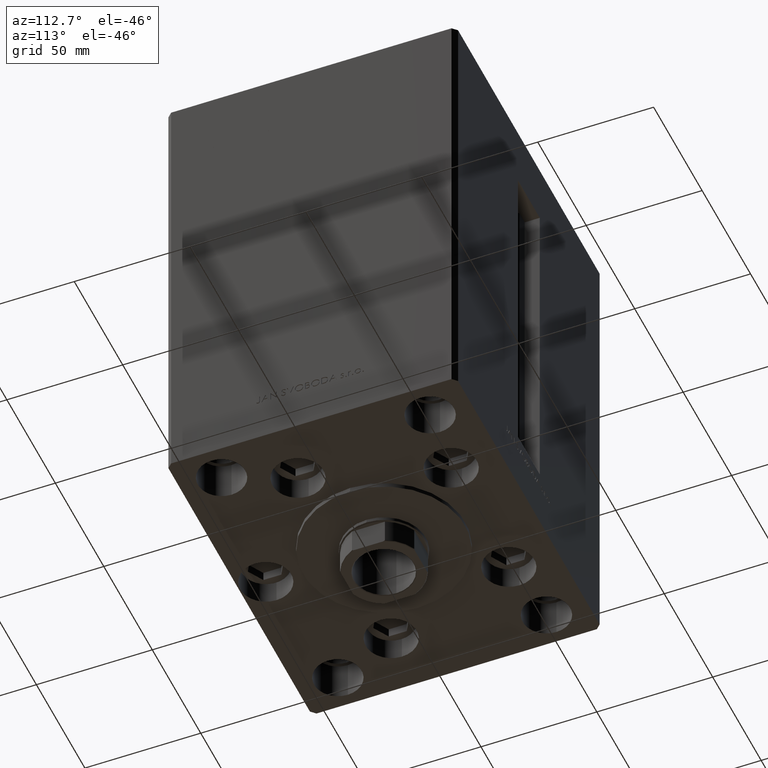
[diagram: clean part render]
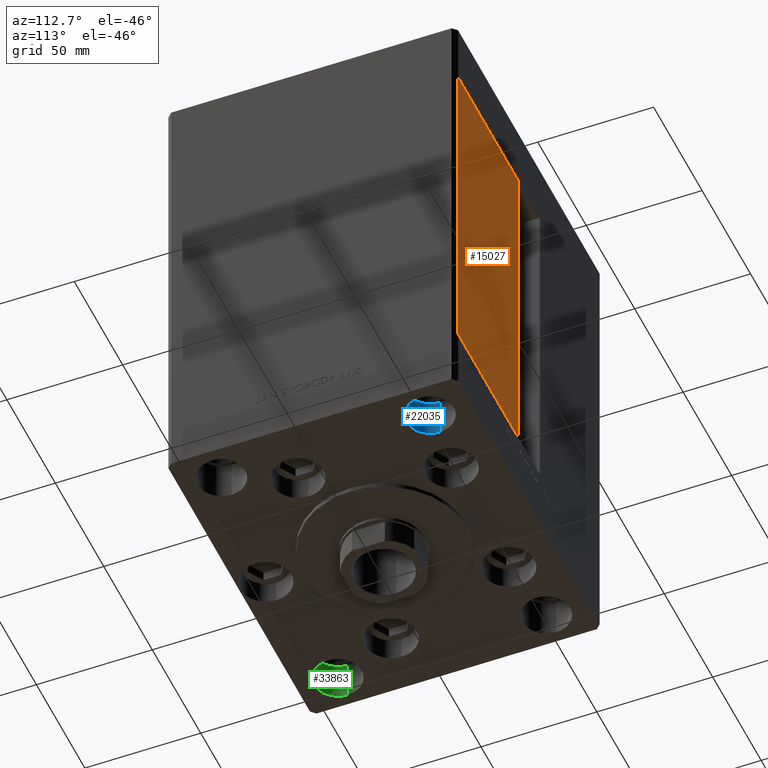
[diagram: same view with three faces highlighted in distinct colors, each labeled with its STEP entity id]
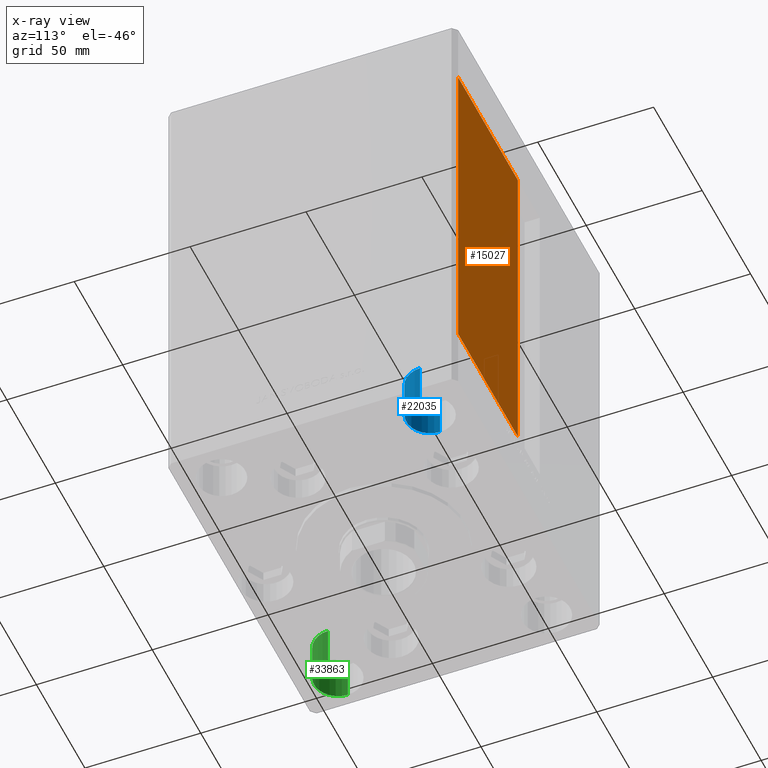
[diagram: x-ray of the same camera — body ghosted, the three highlighted faces saturated]
A machine part, auxiliary view with three faces highlighted in distinct colors.
The next image is the same camera in x-ray (body ghosted, the three faces saturated) — at least one of them is partly hidden behind the body in this view.
Their STEP definitions:

[orange] entity #15027 — the highlighted planar face has unit normal (-0, -1, 0).
#658 = LINE ( 'NONE', #28387, #8424 ) ;
#1835 = FACE_OUTER_BOUND ( 'NONE', #12803, .T. ) ;
#2024 = CARTESIAN_POINT ( 'NONE',  ( 73.00000000000001421, 62.50000000000000000, 0.000000000000000000 ) ) ;
#3334 = VERTEX_POINT ( 'NONE', #20939 ) ;
#4470 = DIRECTION ( 'NONE',  ( -1.000000000000000000, 1.123707514802790025E-16, 0.000000000000000000 ) ) ;
#8424 = VECTOR ( 'NONE', #4470, 1000.000000000000000 ) ;
#8457 = ORIENTED_EDGE ( 'NONE', *, *, #12742, .T. ) ;
#8594 = VERTEX_POINT ( 'NONE', #28262 ) ;
#12742 = EDGE_CURVE ( 'NONE', #22221, #3334, #25839, .T. ) ;
#12803 = EDGE_LOOP ( 'NONE', ( #38121, #8457, #17030, #33456 ) ) ;
#13502 = VECTOR ( 'NONE', #32947, 1000.000000000000000 ) ;
#14126 = LINE ( 'NONE', #28882, #13502 ) ;
#14719 = VECTOR ( 'NONE', #39176, 1000.000000000000000 ) ;
#15027 = ADVANCED_FACE ( 'NONE', ( #1835 ), #44292, .F. ) ;
#17030 = ORIENTED_EDGE ( 'NONE', *, *, #32916, .T. ) ;
#18450 = DIRECTION ( 'NONE',  ( -0.000000000000000000, -0.000000000000000000, 1.000000000000000000 ) ) ;
#20939 = CARTESIAN_POINT ( 'NONE',  ( 11.24999999999999467, 62.49999999999999289, 147.0000000000000000 ) ) ;
#21830 = VERTEX_POINT ( 'NONE', #2024 ) ;
#22221 = VERTEX_POINT ( 'NONE', #46362 ) ;
#24992 = CARTESIAN_POINT ( 'NONE',  ( -11.25000000000000178, 62.49999999999999289, 147.0000000000000000 ) ) ;
#25839 = LINE ( 'NONE', #41328, #37431 ) ;
#26148 = EDGE_CURVE ( 'NONE', #21830, #22221, #658, .T. ) ;
#28262 = CARTESIAN_POINT ( 'NONE',  ( 73.00000000000001421, 62.50000000000000000, 147.0000000000000000 ) ) ;
#28387 = CARTESIAN_POINT ( 'NONE',  ( -11.25000000000000178, 62.49999999999999289, 0.000000000000000000 ) ) ;
#28882 = CARTESIAN_POINT ( 'NONE',  ( -11.25000000000000178, 62.49999999999999289, 147.0000000000000000 ) ) ;
#32916 = EDGE_CURVE ( 'NONE', #3334, #8594, #14126, .T. ) ;
#32947 = DIRECTION ( 'NONE',  ( 1.000000000000000000, 0.000000000000000000, 0.000000000000000000 ) ) ;
#33456 = ORIENTED_EDGE ( 'NONE', *, *, #47829, .T. ) ;
#37431 = VECTOR ( 'NONE', #18450, 1000.000000000000000 ) ;
#38121 = ORIENTED_EDGE ( 'NONE', *, *, #26148, .T. ) ;
#39176 = DIRECTION ( 'NONE',  ( -0.000000000000000000, -0.000000000000000000, -1.000000000000000000 ) ) ;
#40482 = DIRECTION ( 'NONE',  ( 1.000000000000000000, -1.123707514802790025E-16, 0.000000000000000000 ) ) ;
#41328 = CARTESIAN_POINT ( 'NONE',  ( 11.25000000000000178, 62.49999999999999289, 0.000000000000000000 ) ) ;
#42494 = CARTESIAN_POINT ( 'NONE',  ( 73.00000000000001421, 62.50000000000000000, 147.0000000000000000 ) ) ;
#43084 = AXIS2_PLACEMENT_3D ( 'NONE', #24992, #49122, #40482 ) ;
#44292 = PLANE ( 'NONE',  #43084 ) ;
#46300 = LINE ( 'NONE', #42494, #14719 ) ;
#46362 = CARTESIAN_POINT ( 'NONE',  ( 11.25000000000000178, 62.49999999999999289, 0.000000000000000000 ) ) ;
#47829 = EDGE_CURVE ( 'NONE', #8594, #21830, #46300, .T. ) ;
#49122 = DIRECTION ( 'NONE',  ( -1.123707514802790025E-16, -1.000000000000000000, 0.000000000000000000 ) ) ;

[blue] entity #22035 — the highlighted cylindrical surface (edge-blend (fillet) strip) has radius 10.25 mm, axis along (0, 0, -1).
#1644 = DIRECTION ( 'NONE',  ( 1.000000000000000000, 0.000000000000000000, 0.000000000000000000 ) ) ;
#2212 = ORIENTED_EDGE ( 'NONE', *, *, #18835, .T. ) ;
#2613 = VERTEX_POINT ( 'NONE', #14468 ) ;
#6094 = CARTESIAN_POINT ( 'NONE',  ( -70.25000000000000000, 45.00000000000000711, 0.000000000000000000 ) ) ;
#7420 = AXIS2_PLACEMENT_3D ( 'NONE', #39674, #23928, #15798 ) ;
#11056 = VECTOR ( 'NONE', #40616, 1000.000000000000000 ) ;
#11233 = ORIENTED_EDGE ( 'NONE', *, *, #16165, .F. ) ;
#11246 = EDGE_CURVE ( 'NONE', #2613, #50299, #36616, .T. ) ;
#11638 = CARTESIAN_POINT ( 'NONE',  ( -49.74999999999999289, 45.00000000000000711, 0.000000000000000000 ) ) ;
#12357 = CIRCLE ( 'NONE', #40769, 10.25000000000000178 ) ;
#13354 = EDGE_LOOP ( 'NONE', ( #11233, #45288, #2212, #49101 ) ) ;
#13731 = DIRECTION ( 'NONE',  ( -0.000000000000000000, -0.000000000000000000, 1.000000000000000000 ) ) ;
#14468 = CARTESIAN_POINT ( 'NONE',  ( -49.74999999999999289, 45.00000000000000711, -17.00000000000000000 ) ) ;
#15798 = DIRECTION ( 'NONE',  ( 1.000000000000000000, 0.000000000000000000, 0.000000000000000000 ) ) ;
#16165 = EDGE_CURVE ( 'NONE', #35245, #2613, #26904, .T. ) ;
#18835 = EDGE_CURVE ( 'NONE', #21792, #50299, #12357, .T. ) ;
#21722 = CARTESIAN_POINT ( 'NONE',  ( -60.00000000000000000, 45.00000000000000711, 0.000000000000000000 ) ) ;
#21792 = VERTEX_POINT ( 'NONE', #6094 ) ;
#22035 = ADVANCED_FACE ( 'NONE', ( #23618 ), #46243, .F. ) ;
#22321 = LINE ( 'NONE', #29455, #11056 ) ;
#22785 = CARTESIAN_POINT ( 'NONE',  ( -70.25000000000000000, 45.00000000000000711, -17.00000000000000000 ) ) ;
#23618 = FACE_OUTER_BOUND ( 'NONE', #13354, .T. ) ;
#23928 = DIRECTION ( 'NONE',  ( 0.000000000000000000, 0.000000000000000000, 1.000000000000000000 ) ) ;
#26904 = CIRCLE ( 'NONE', #7420, 10.25000000000000178 ) ;
#26952 = DIRECTION ( 'NONE',  ( -0.000000000000000000, -0.000000000000000000, 1.000000000000000000 ) ) ;
#27507 = VECTOR ( 'NONE', #13731, 1000.000000000000000 ) ;
#29455 = CARTESIAN_POINT ( 'NONE',  ( -70.25000000000000000, 45.00000000000000711, -17.00000000000000000 ) ) ;
#29613 = DIRECTION ( 'NONE',  ( 1.000000000000000000, 0.000000000000000000, 0.000000000000000000 ) ) ;
#30112 = DIRECTION ( 'NONE',  ( 0.000000000000000000, 0.000000000000000000, 1.000000000000000000 ) ) ;
#32548 = EDGE_CURVE ( 'NONE', #35245, #21792, #22321, .T. ) ;
#32559 = CARTESIAN_POINT ( 'NONE',  ( -49.74999999999999289, 45.00000000000000711, -17.00000000000000000 ) ) ;
#35245 = VERTEX_POINT ( 'NONE', #22785 ) ;
#36616 = LINE ( 'NONE', #32559, #27507 ) ;
#39674 = CARTESIAN_POINT ( 'NONE',  ( -60.00000000000000000, 45.00000000000000711, -17.00000000000000000 ) ) ;
#40616 = DIRECTION ( 'NONE',  ( -0.000000000000000000, -0.000000000000000000, 1.000000000000000000 ) ) ;
#40769 = AXIS2_PLACEMENT_3D ( 'NONE', #21722, #30112, #29613 ) ;
#42676 = CARTESIAN_POINT ( 'NONE',  ( -60.00000000000000000, 45.00000000000000711, -17.00000000000000000 ) ) ;
#43203 = AXIS2_PLACEMENT_3D ( 'NONE', #42676, #26952, #1644 ) ;
#45288 = ORIENTED_EDGE ( 'NONE', *, *, #32548, .T. ) ;
#46243 = CYLINDRICAL_SURFACE ( 'NONE', #43203, 10.25000000000000178 ) ;
#49101 = ORIENTED_EDGE ( 'NONE', *, *, #11246, .F. ) ;
#50299 = VERTEX_POINT ( 'NONE', #11638 ) ;

[green] entity #33863 — the highlighted cylindrical surface (edge-blend (fillet) strip) has radius 10.25 mm, axis along (0, 0, -1).
#3070 = VECTOR ( 'NONE', #17061, 1000.000000000000000 ) ;
#3705 = DIRECTION ( 'NONE',  ( 1.000000000000000000, 0.000000000000000000, 0.000000000000000000 ) ) ;
#5350 = CARTESIAN_POINT ( 'NONE',  ( 70.25000000000000000, -45.00000000000000000, -17.00000000000000000 ) ) ;
#5703 = ORIENTED_EDGE ( 'NONE', *, *, #11700, .T. ) ;
#8601 = EDGE_CURVE ( 'NONE', #37017, #35189, #20878, .T. ) ;
#8705 = CARTESIAN_POINT ( 'NONE',  ( 49.75000000000000000, -45.00000000000000000, -17.00000000000000000 ) ) ;
#8877 = AXIS2_PLACEMENT_3D ( 'NONE', #19990, #46425, #3705 ) ;
#11185 = ORIENTED_EDGE ( 'NONE', *, *, #8601, .F. ) ;
#11572 = DIRECTION ( 'NONE',  ( 1.000000000000000000, 0.000000000000000000, 0.000000000000000000 ) ) ;
#11700 = EDGE_CURVE ( 'NONE', #39731, #35189, #25114, .T. ) ;
#15033 = AXIS2_PLACEMENT_3D ( 'NONE', #39006, #43578, #11572 ) ;
#15637 = CARTESIAN_POINT ( 'NONE',  ( 60.00000000000000711, -45.00000000000000000, -17.00000000000000000 ) ) ;
#17061 = DIRECTION ( 'NONE',  ( -0.000000000000000000, -0.000000000000000000, 1.000000000000000000 ) ) ;
#17071 = DIRECTION ( 'NONE',  ( -0.000000000000000000, -0.000000000000000000, 1.000000000000000000 ) ) ;
#17470 = CIRCLE ( 'NONE', #15033, 10.25000000000000178 ) ;
#19990 = CARTESIAN_POINT ( 'NONE',  ( 60.00000000000000711, -45.00000000000000000, 0.000000000000000000 ) ) ;
#20878 = LINE ( 'NONE', #5350, #3070 ) ;
#23061 = ORIENTED_EDGE ( 'NONE', *, *, #39401, .T. ) ;
#25114 = CIRCLE ( 'NONE', #8877, 10.25000000000000178 ) ;
#26121 = CARTESIAN_POINT ( 'NONE',  ( 70.25000000000000000, -45.00000000000000000, 0.000000000000000000 ) ) ;
#26559 = CARTESIAN_POINT ( 'NONE',  ( 49.75000000000000000, -45.00000000000000000, -17.00000000000000000 ) ) ;
#30303 = EDGE_CURVE ( 'NONE', #40239, #37017, #17470, .T. ) ;
#32594 = DIRECTION ( 'NONE',  ( 1.000000000000000000, 0.000000000000000000, 0.000000000000000000 ) ) ;
#33863 = ADVANCED_FACE ( 'NONE', ( #34965 ), #44016, .F. ) ;
#34965 = FACE_OUTER_BOUND ( 'NONE', #47609, .T. ) ;
#35169 = LINE ( 'NONE', #8705, #40387 ) ;
#35189 = VERTEX_POINT ( 'NONE', #26121 ) ;
#37017 = VERTEX_POINT ( 'NONE', #43631 ) ;
#39006 = CARTESIAN_POINT ( 'NONE',  ( 60.00000000000000711, -45.00000000000000000, -17.00000000000000000 ) ) ;
#39401 = EDGE_CURVE ( 'NONE', #40239, #39731, #35169, .T. ) ;
#39731 = VERTEX_POINT ( 'NONE', #40097 ) ;
#40097 = CARTESIAN_POINT ( 'NONE',  ( 49.75000000000000000, -45.00000000000000000, 0.000000000000000000 ) ) ;
#40239 = VERTEX_POINT ( 'NONE', #26559 ) ;
#40387 = VECTOR ( 'NONE', #47590, 1000.000000000000000 ) ;
#43578 = DIRECTION ( 'NONE',  ( 0.000000000000000000, 0.000000000000000000, 1.000000000000000000 ) ) ;
#43631 = CARTESIAN_POINT ( 'NONE',  ( 70.25000000000000000, -45.00000000000000000, -17.00000000000000000 ) ) ;
#44016 = CYLINDRICAL_SURFACE ( 'NONE', #49294, 10.25000000000000178 ) ;
#46425 = DIRECTION ( 'NONE',  ( 0.000000000000000000, 0.000000000000000000, 1.000000000000000000 ) ) ;
#47590 = DIRECTION ( 'NONE',  ( -0.000000000000000000, -0.000000000000000000, 1.000000000000000000 ) ) ;
#47609 = EDGE_LOOP ( 'NONE', ( #47780, #23061, #5703, #11185 ) ) ;
#47780 = ORIENTED_EDGE ( 'NONE', *, *, #30303, .F. ) ;
#49294 = AXIS2_PLACEMENT_3D ( 'NONE', #15637, #17071, #32594 ) ;